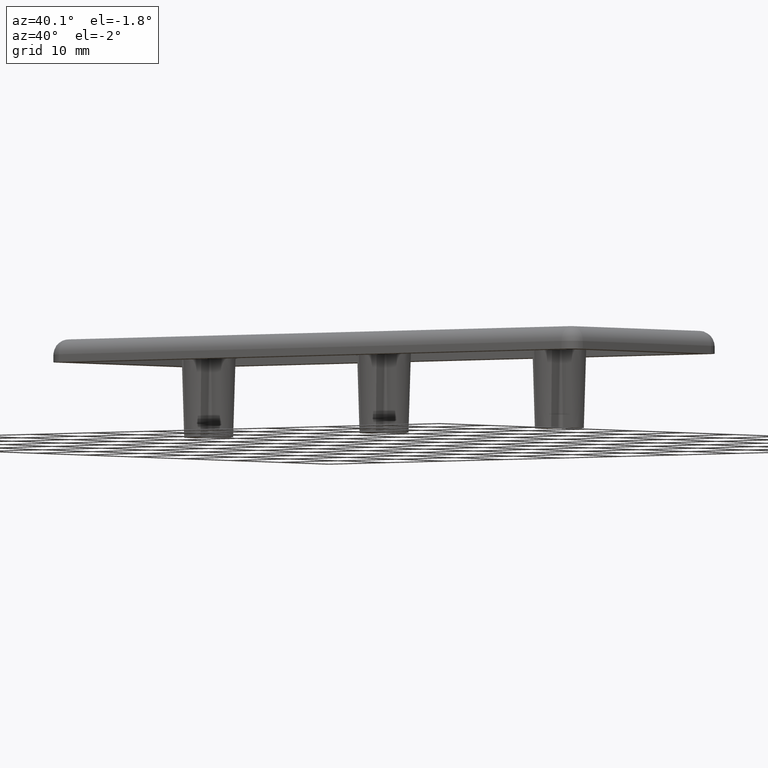
[diagram: clean part render]
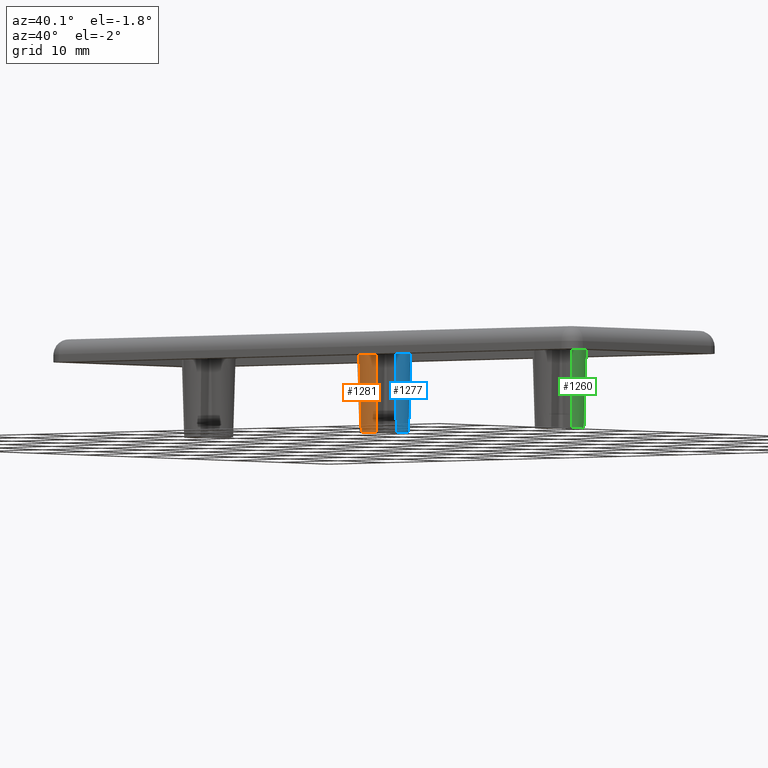
[diagram: same view with three faces highlighted in distinct colors, each labeled with its STEP entity id]
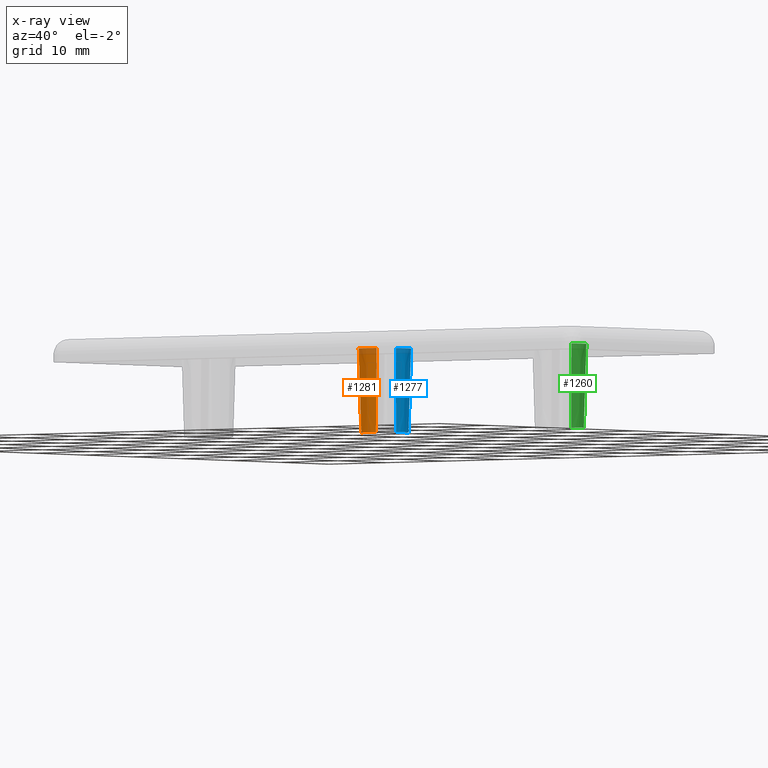
[diagram: x-ray of the same camera — body ghosted, the three highlighted faces saturated]
A machine part, auxiliary view with three faces highlighted in distinct colors.
The next image is the same camera in x-ray (body ghosted, the three faces saturated) — at least one of them is partly hidden behind the body in this view.
Their STEP definitions:

[orange] entity #1281 — the highlighted conical surface has half-angle 1.5 deg.
#49=(
BOUNDED_CURVE()
B_SPLINE_CURVE(2,(#2105,#2106,#2107),.UNSPECIFIED.,.F.,.F.)
B_SPLINE_CURVE_WITH_KNOTS((3,3),(0.201847277910584,1.32441866958039),
 .UNSPECIFIED.)
CURVE()
GEOMETRIC_REPRESENTATION_ITEM()
RATIONAL_B_SPLINE_CURVE((1.,1.,1.))
REPRESENTATION_ITEM('')
);
#50=(
BOUNDED_CURVE()
B_SPLINE_CURVE(2,(#2113,#2114,#2115),.UNSPECIFIED.,.F.,.F.)
B_SPLINE_CURVE_WITH_KNOTS((3,3),(0.20184727791059,1.32441866958041),
 .UNSPECIFIED.)
CURVE()
GEOMETRIC_REPRESENTATION_ITEM()
RATIONAL_B_SPLINE_CURVE((1.,1.,1.))
REPRESENTATION_ITEM('')
);
#133=FACE_OUTER_BOUND('',#207,.T.);
#207=EDGE_LOOP('',(#1017,#1018,#1019,#1020));
#491=CIRCLE('',#1396,3.66304513726106);
#492=CIRCLE('',#1397,3.375);
#593=VERTEX_POINT('',#2102);
#594=VERTEX_POINT('',#2104);
#595=VERTEX_POINT('',#2110);
#596=VERTEX_POINT('',#2112);
#754=EDGE_CURVE('',#594,#593,#49,.T.);
#756=EDGE_CURVE('',#595,#593,#491,.T.);
#757=EDGE_CURVE('',#596,#595,#50,.T.);
#758=EDGE_CURVE('',#594,#596,#492,.T.);
#1017=ORIENTED_EDGE('',*,*,#756,.F.);
#1018=ORIENTED_EDGE('',*,*,#757,.F.);
#1019=ORIENTED_EDGE('',*,*,#758,.F.);
#1020=ORIENTED_EDGE('',*,*,#754,.T.);
#1236=CONICAL_SURFACE('',#1395,3.375,1.5);
#1281=ADVANCED_FACE('',(#133),#1236,.T.);
#1395=AXIS2_PLACEMENT_3D('',#2109,#1671,#1672);
#1396=AXIS2_PLACEMENT_3D('',#2111,#1673,#1674);
#1397=AXIS2_PLACEMENT_3D('',#2116,#1675,#1676);
#1671=DIRECTION('center_axis',(0.,0.,1.));
#1672=DIRECTION('ref_axis',(-1.,0.,0.));
#1673=DIRECTION('center_axis',(0.,0.,1.));
#1674=DIRECTION('ref_axis',(-1.,0.,0.));
#1675=DIRECTION('center_axis',(0.,0.,-1.));
#1676=DIRECTION('ref_axis',(-1.,0.,0.));
#2102=CARTESIAN_POINT('',(1.53804513726105,-3.3245024941123,1.2));
#2104=CARTESIAN_POINT('',(1.25,-3.13498405099611,-9.8));
#2105=CARTESIAN_POINT('Ctrl Pts',(1.25000000000022,-3.13498405099638,-9.79999999999157));
#2106=CARTESIAN_POINT('Ctrl Pts',(1.38979701094471,-3.22974327255073,-4.46136753769194));
#2107=CARTESIAN_POINT('Ctrl Pts',(1.53804513726105,-3.3245024941123,1.2));
#2109=CARTESIAN_POINT('Origin',(0.,0.,-9.8));
#2110=CARTESIAN_POINT('',(-1.53804513726105,-3.3245024941123,1.2));
#2111=CARTESIAN_POINT('Origin',(0.,0.,1.2));
#2112=CARTESIAN_POINT('',(-1.25,-3.13498405099611,-9.8));
#2113=CARTESIAN_POINT('Ctrl Pts',(-1.25000000000022,-3.13498405099638,-9.79999999999157));
#2114=CARTESIAN_POINT('Ctrl Pts',(-1.38979701094471,-3.22974327255073,-4.46136753769202));
#2115=CARTESIAN_POINT('Ctrl Pts',(-1.53804513726105,-3.3245024941123,1.2));
#2116=CARTESIAN_POINT('Origin',(0.,0.,-9.8));

[blue] entity #1277 — the highlighted conical surface has half-angle 1.5 deg.
#47=(
BOUNDED_CURVE()
B_SPLINE_CURVE(2,(#2077,#2078,#2079),.UNSPECIFIED.,.F.,.F.)
B_SPLINE_CURVE_WITH_KNOTS((3,3),(0.201847277910576,1.32441866958037),
 .UNSPECIFIED.)
CURVE()
GEOMETRIC_REPRESENTATION_ITEM()
RATIONAL_B_SPLINE_CURVE((1.,1.,1.))
REPRESENTATION_ITEM('')
);
#48=(
BOUNDED_CURVE()
B_SPLINE_CURVE(2,(#2085,#2086,#2087),.UNSPECIFIED.,.F.,.F.)
B_SPLINE_CURVE_WITH_KNOTS((3,3),(0.201847277910602,1.32441866958044),
 .UNSPECIFIED.)
CURVE()
GEOMETRIC_REPRESENTATION_ITEM()
RATIONAL_B_SPLINE_CURVE((1.,1.,1.))
REPRESENTATION_ITEM('')
);
#129=FACE_OUTER_BOUND('',#203,.T.);
#203=EDGE_LOOP('',(#1001,#1002,#1003,#1004));
#487=CIRCLE('',#1388,3.66304513726106);
#488=CIRCLE('',#1389,3.375);
#585=VERTEX_POINT('',#2074);
#586=VERTEX_POINT('',#2076);
#587=VERTEX_POINT('',#2082);
#588=VERTEX_POINT('',#2084);
#742=EDGE_CURVE('',#586,#585,#47,.T.);
#744=EDGE_CURVE('',#587,#585,#487,.T.);
#745=EDGE_CURVE('',#588,#587,#48,.T.);
#746=EDGE_CURVE('',#586,#588,#488,.T.);
#1001=ORIENTED_EDGE('',*,*,#744,.F.);
#1002=ORIENTED_EDGE('',*,*,#745,.F.);
#1003=ORIENTED_EDGE('',*,*,#746,.F.);
#1004=ORIENTED_EDGE('',*,*,#742,.T.);
#1234=CONICAL_SURFACE('',#1387,3.375,1.5);
#1277=ADVANCED_FACE('',(#129),#1234,.T.);
#1387=AXIS2_PLACEMENT_3D('',#2081,#1649,#1650);
#1388=AXIS2_PLACEMENT_3D('',#2083,#1651,#1652);
#1389=AXIS2_PLACEMENT_3D('',#2088,#1653,#1654);
#1649=DIRECTION('center_axis',(0.,0.,1.));
#1650=DIRECTION('ref_axis',(-1.,0.,0.));
#1651=DIRECTION('center_axis',(0.,0.,1.));
#1652=DIRECTION('ref_axis',(-1.,0.,0.));
#1653=DIRECTION('center_axis',(0.,0.,-1.));
#1654=DIRECTION('ref_axis',(-1.,0.,0.));
#2074=CARTESIAN_POINT('',(3.3245024941123,1.53804513726106,1.2));
#2076=CARTESIAN_POINT('',(3.13498405099611,1.25,-9.8));
#2077=CARTESIAN_POINT('Ctrl Pts',(3.13498405099638,1.25000000000022,-9.79999999999157));
#2078=CARTESIAN_POINT('Ctrl Pts',(3.22974327255073,1.38979701094472,-4.46136753769181));
#2079=CARTESIAN_POINT('Ctrl Pts',(3.3245024941123,1.53804513726106,1.2));
#2081=CARTESIAN_POINT('Origin',(0.,0.,-9.8));
#2082=CARTESIAN_POINT('',(3.3245024941123,-1.53804513726106,1.2));
#2083=CARTESIAN_POINT('Origin',(0.,0.,1.2));
#2084=CARTESIAN_POINT('',(3.13498405099611,-1.25,-9.8));
#2085=CARTESIAN_POINT('Ctrl Pts',(3.13498405099638,-1.25000000000022,-9.79999999999157));
#2086=CARTESIAN_POINT('Ctrl Pts',(3.22974327255072,-1.38979701094471,-4.46136753769219));
#2087=CARTESIAN_POINT('Ctrl Pts',(3.3245024941123,-1.53804513726106,1.2));
#2088=CARTESIAN_POINT('Origin',(0.,0.,-9.8));

[green] entity #1260 — the highlighted conical surface has half-angle 1.5 deg.
#39=(
BOUNDED_CURVE()
B_SPLINE_CURVE(2,(#1964,#1965,#1966),.UNSPECIFIED.,.F.,.F.)
B_SPLINE_CURVE_WITH_KNOTS((3,3),(0.201847277910576,1.32441866958037),
 .UNSPECIFIED.)
CURVE()
GEOMETRIC_REPRESENTATION_ITEM()
RATIONAL_B_SPLINE_CURVE((1.,1.,1.))
REPRESENTATION_ITEM('')
);
#40=(
BOUNDED_CURVE()
B_SPLINE_CURVE(2,(#1972,#1973,#1974),.UNSPECIFIED.,.F.,.F.)
B_SPLINE_CURVE_WITH_KNOTS((3,3),(0.201847277910602,1.32441866958044),
 .UNSPECIFIED.)
CURVE()
GEOMETRIC_REPRESENTATION_ITEM()
RATIONAL_B_SPLINE_CURVE((1.,1.,1.))
REPRESENTATION_ITEM('')
);
#112=FACE_OUTER_BOUND('',#186,.T.);
#186=EDGE_LOOP('',(#921,#922,#923,#924));
#471=CIRCLE('',#1355,3.66304513726106);
#472=CIRCLE('',#1356,3.375);
#553=VERTEX_POINT('',#1961);
#554=VERTEX_POINT('',#1963);
#555=VERTEX_POINT('',#1969);
#556=VERTEX_POINT('',#1971);
#694=EDGE_CURVE('',#554,#553,#39,.T.);
#696=EDGE_CURVE('',#555,#553,#471,.T.);
#697=EDGE_CURVE('',#556,#555,#40,.T.);
#698=EDGE_CURVE('',#554,#556,#472,.T.);
#921=ORIENTED_EDGE('',*,*,#696,.F.);
#922=ORIENTED_EDGE('',*,*,#697,.F.);
#923=ORIENTED_EDGE('',*,*,#698,.F.);
#924=ORIENTED_EDGE('',*,*,#694,.T.);
#1226=CONICAL_SURFACE('',#1354,3.375,1.5);
#1260=ADVANCED_FACE('',(#112),#1226,.T.);
#1354=AXIS2_PLACEMENT_3D('',#1968,#1559,#1560);
#1355=AXIS2_PLACEMENT_3D('',#1970,#1561,#1562);
#1356=AXIS2_PLACEMENT_3D('',#1975,#1563,#1564);
#1559=DIRECTION('center_axis',(0.,0.,1.));
#1560=DIRECTION('ref_axis',(-1.,0.,0.));
#1561=DIRECTION('center_axis',(0.,0.,1.));
#1562=DIRECTION('ref_axis',(-1.,0.,0.));
#1563=DIRECTION('center_axis',(0.,0.,-1.));
#1564=DIRECTION('ref_axis',(-1.,0.,0.));
#1961=CARTESIAN_POINT('',(33.3245024941123,1.53804513726106,1.2));
#1963=CARTESIAN_POINT('',(33.1349840509961,1.25,-9.8));
#1964=CARTESIAN_POINT('Ctrl Pts',(33.1349840509964,1.25000000000022,-9.79999999999157));
#1965=CARTESIAN_POINT('Ctrl Pts',(33.2297432725507,1.38979701094472,-4.46136753769181));
#1966=CARTESIAN_POINT('Ctrl Pts',(33.3245024941123,1.53804513726106,1.2));
#1968=CARTESIAN_POINT('Origin',(30.,0.,-9.8));
#1969=CARTESIAN_POINT('',(33.3245024941123,-1.53804513726106,1.2));
#1970=CARTESIAN_POINT('Origin',(30.,0.,1.2));
#1971=CARTESIAN_POINT('',(33.1349840509961,-1.25,-9.8));
#1972=CARTESIAN_POINT('Ctrl Pts',(33.1349840509964,-1.25000000000022,-9.79999999999157));
#1973=CARTESIAN_POINT('Ctrl Pts',(33.2297432725507,-1.38979701094471,-4.46136753769219));
#1974=CARTESIAN_POINT('Ctrl Pts',(33.3245024941123,-1.53804513726106,1.2));
#1975=CARTESIAN_POINT('Origin',(30.,0.,-9.8));